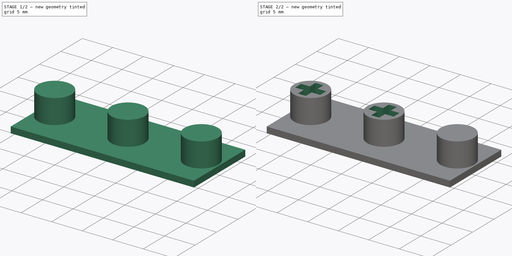
[diagram: build sequence overview — one tinted view per stage of 2, left to right]
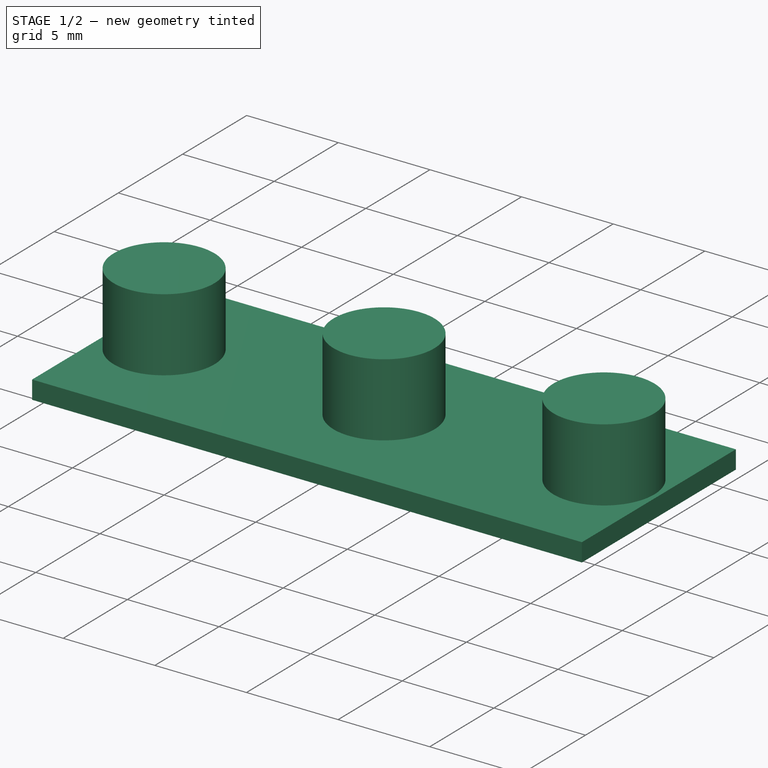
[diagram: stage 1 of 2 — iso view after this stage's code; geometry added in this stage tinted green]
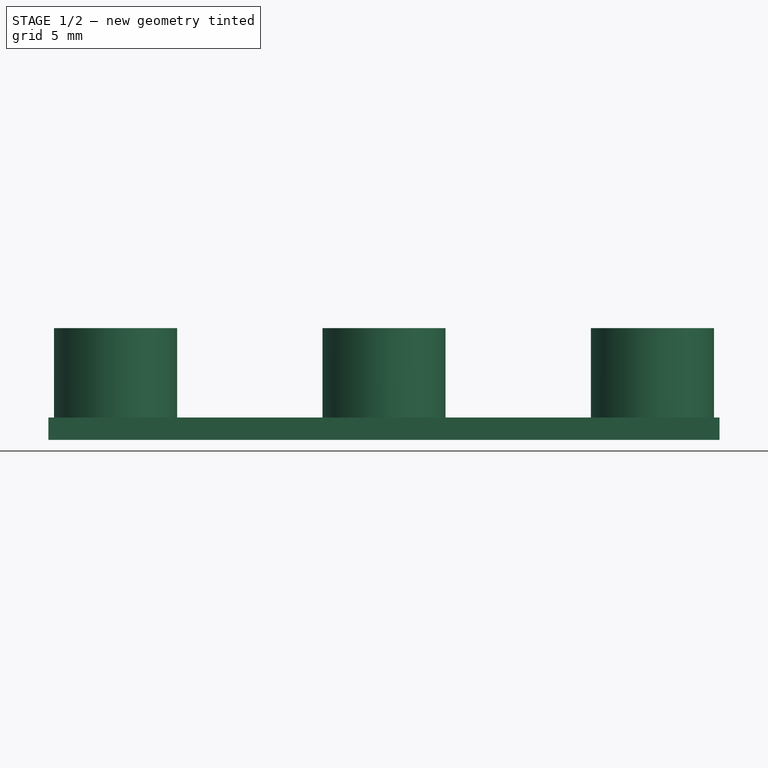
[diagram: stage 1 of 2 — front view after this stage's code; geometry added in this stage tinted green]
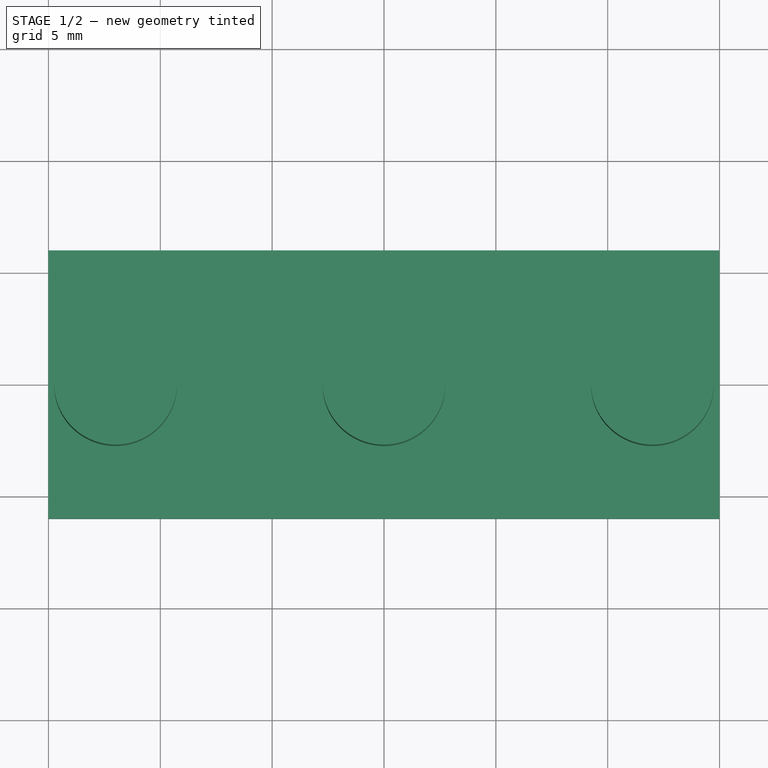
[diagram: stage 1 of 2 — top view after this stage's code; geometry added in this stage tinted green]
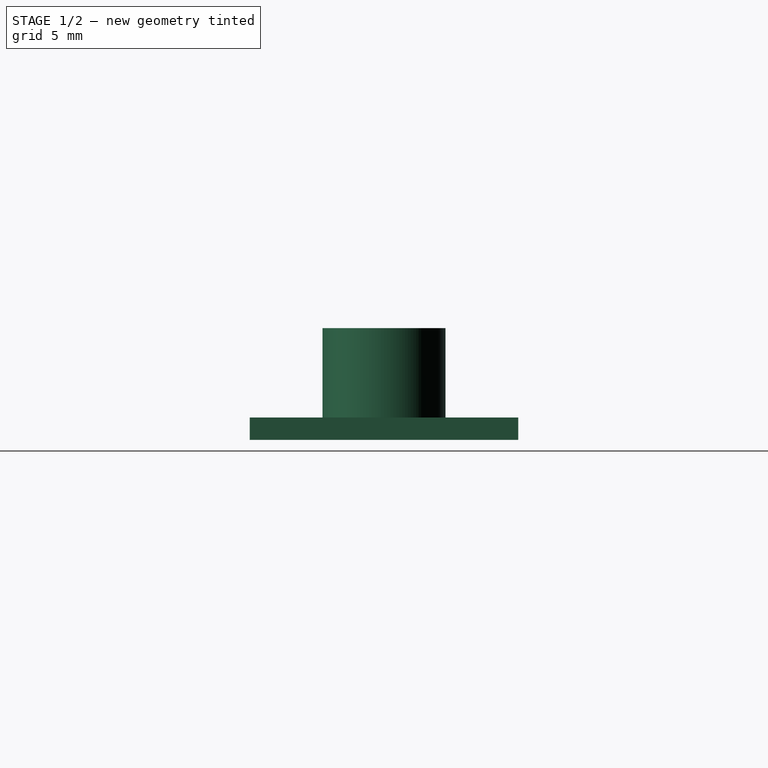
[diagram: stage 1 of 2 — right view after this stage's code; geometry added in this stage tinted green]
FCSTD DOCUMENT  (FreeCAD 1.0R38806 (Git))
Label: keycap 1u insert
License: All rights reserved
LicenseURL: http://en.wikipedia.org/wiki/All_rights_reserved
objects: Sketcher::SketchObject×3, PartDesign::Pad×2, PartDesign::Pocket×1, PartDesign::Body×1
note: 16 computed .brp shape members not serialized (recipe doc carries the construction recipe); baked Part::Feature solids carry a one-line shape summary decoded from their .brp

FEATURE [Sketcher::SketchObject] Sketch
  ArcFitTolerance = 0
  AttachmentSupport = -> [XY_Plane]
  FullyConstrained = true
  MakeInternals = false
  MapMode = 5
  sketch-geometry (4):
    g0: LineSegment StartX=-15 StartY=6 StartZ=0 EndX=15 EndY=6 EndZ=0
    g1: LineSegment StartX=15 StartY=6 StartZ=0 EndX=15 EndY=-6 EndZ=0
    g2: LineSegment StartX=15 StartY=-6 StartZ=0 EndX=-15 EndY=-6 EndZ=0
    g3: LineSegment StartX=-15 StartY=-6 StartZ=0 EndX=-15 EndY=6 EndZ=0
  constraints (12):
    c: Coincident(g0,g1)
    c: Coincident(g1,g2)
    c: Coincident(g2,g3)
    c: Coincident(g3,g0)
    c: Horizontal(g0)
    c: Horizontal(g2)
    c: Vertical(g1)
    c: Vertical(g3)
    c: DistanceY(g1,g1) = 12
    c: DistanceX(g0,g0) = 30
    c: DistanceY(g-1,g0) = 6
    c: DistanceX(g-1,g0) = 15
FEATURE [PartDesign::Pad] Pad
  Direction = (0,0,1)
  Length = 1
  Length2 = 10
  Profile = -> Sketch
  ReferenceAxis = -> Sketch [N_Axis]
  Suppressed = false
  Type = 0
FEATURE [Sketcher::SketchObject] Sketch001
  ArcFitTolerance = 0
  AttachmentSupport = -> [Pad]
  FullyConstrained = true
  MakeInternals = false
  MapMode = 5
  Placement = pos=(0,0,1) rot=(0,0,1;0rad)
  sketch-geometry (3):
    g0: Circle CenterX=0 CenterY=0 CenterZ=0 NormalX=0 NormalY=0 NormalZ=1 AngleXU=0 Radius=2.75
    g1: Circle CenterX=-12 CenterY=0 CenterZ=0 NormalX=0 NormalY=0 NormalZ=1 AngleXU=0 Radius=2.75
    g2: Circle CenterX=12 CenterY=0 CenterZ=0 NormalX=0 NormalY=0 NormalZ=1 AngleXU=0 Radius=2.75
  constraints (8):
    c: Coincident(g0,g-1)
    c: Diameter(g0) = 5.5
    c: PointOnObject(g1,g-1)
    c: PointOnObject(g2,g-1)
    c: Equal(g0,g1)
    c: Equal(g0,g2)
    c: DistanceX(g1,g-1) = 12
    c: DistanceX(g0,g2) = 12
FEATURE [PartDesign::Pad] Pad001
  BaseFeature = -> Pad
  Direction = (0,0,1)
  Length = 4
  Length2 = 10
  Profile = -> Sketch001
  ReferenceAxis = -> Sketch001 [N_Axis]
  Suppressed = false
  Type = 0
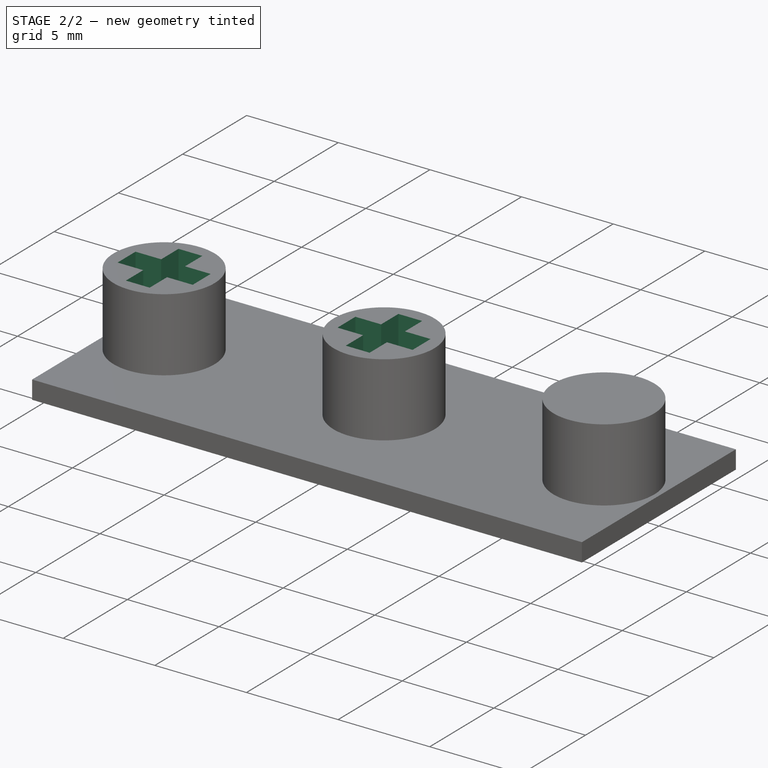
[diagram: stage 2 of 2 — iso view after this stage's code; geometry added in this stage tinted green]
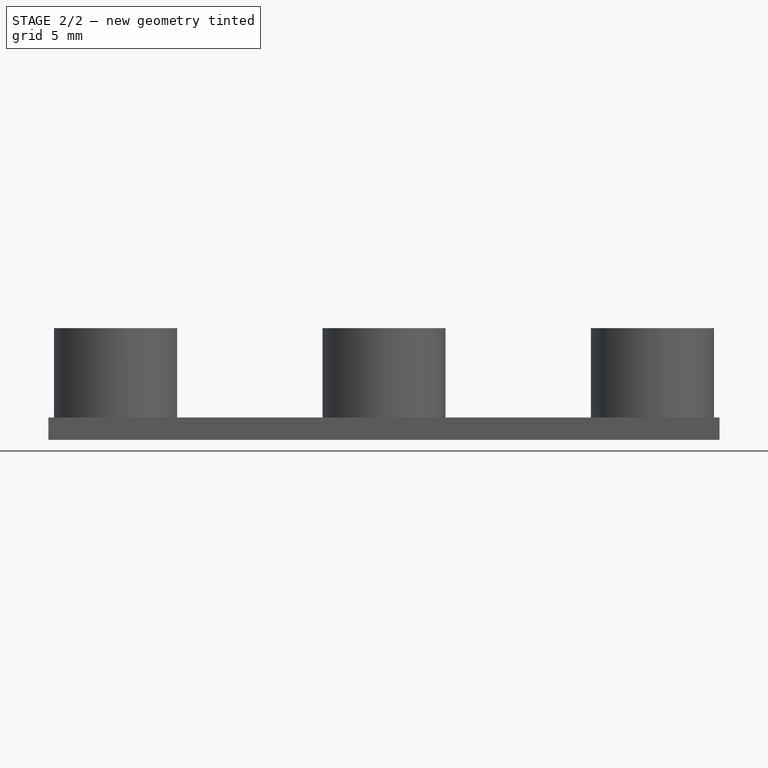
[diagram: stage 2 of 2 — front view after this stage's code; geometry added in this stage tinted green]
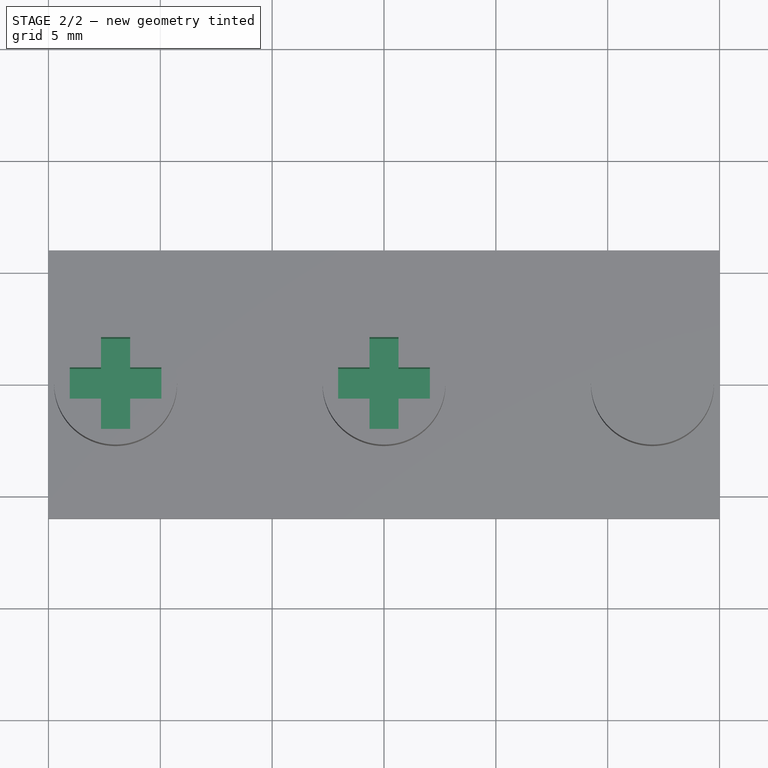
[diagram: stage 2 of 2 — top view after this stage's code; geometry added in this stage tinted green]
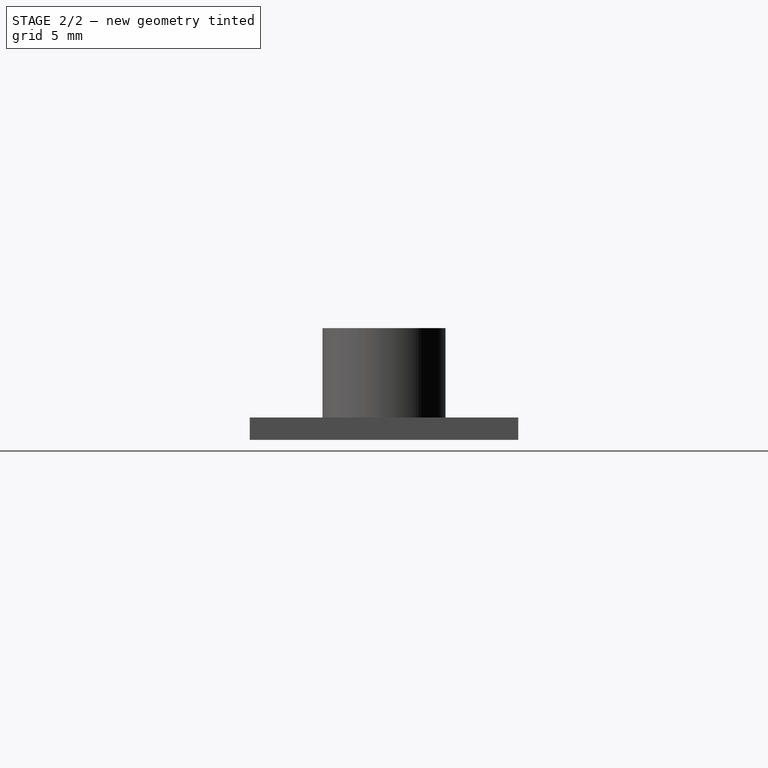
[diagram: stage 2 of 2 — right view after this stage's code; geometry added in this stage tinted green]
FEATURE [Sketcher::SketchObject] Sketch002
  ArcFitTolerance = 0
  AttachmentSupport = -> [Pad001]
  FullyConstrained = true
  MakeInternals = false
  MapMode = 5
  Placement = pos=(0,0,5) rot=(0,0,1;0rad)
  sketch-geometry (30):
    g0: LineSegment StartX=-0.65 StartY=2.05 StartZ=0 EndX=-0.65 EndY=0.7 EndZ=0
    g1: LineSegment StartX=-0.65 StartY=0.7 StartZ=0 EndX=-2.05 EndY=0.7 EndZ=0
    g2: LineSegment StartX=-2.05 StartY=0.7 StartZ=0 EndX=-2.05 EndY=-0.7 EndZ=0
    g3: LineSegment StartX=-2.05 StartY=-0.7 StartZ=0 EndX=-0.65 EndY=-0.7 EndZ=0
    g4: LineSegment StartX=-0.65 StartY=-0.7 StartZ=0 EndX=-0.65 EndY=-2.05 EndZ=0
    g5: LineSegment StartX=-0.65 StartY=-2.05 StartZ=0 EndX=0.65 EndY=-2.05 EndZ=0
    g6: LineSegment StartX=0.65 StartY=-2.05 StartZ=0 EndX=0.65 EndY=-0.7 EndZ=0
    g7: LineSegment StartX=0.65 StartY=-0.7 StartZ=0 EndX=2.05 EndY=-0.7 EndZ=0
    g8: LineSegment StartX=2.05 StartY=-0.7 StartZ=0 EndX=2.05 EndY=0.7 EndZ=0
    g9: LineSegment StartX=2.05 StartY=0.7 StartZ=0 EndX=0.65 EndY=0.7 EndZ=0
    g10: LineSegment StartX=0.65 StartY=0.7 StartZ=0 EndX=0.65 EndY=2.05 EndZ=0
    g11: LineSegment StartX=0.65 StartY=2.05 StartZ=0 EndX=-0.65 EndY=2.05 EndZ=0
    g12: LineSegment [constr] StartX=-0.65 StartY=-0.7 StartZ=0 EndX=0.65 EndY=0.7 EndZ=0
    g13: LineSegment [constr] StartX=0.65 StartY=-0.7 StartZ=0 EndX=-0.65 EndY=0.7 EndZ=0
    g14: GeomPoint [constr] X=0 Y=0 Z=0
    g15: LineSegment StartX=-12.65 StartY=2.05 StartZ=0 EndX=-12.65 EndY=0.7 EndZ=0
    g16: LineSegment StartX=-12.65 StartY=0.7 StartZ=0 EndX=-14.05 EndY=0.7 EndZ=0
    g17: LineSegment StartX=-14.05 StartY=0.7 StartZ=0 EndX=-14.05 EndY=-0.7 EndZ=0
    g18: LineSegment StartX=-14.05 StartY=-0.7 StartZ=0 EndX=-12.65 EndY=-0.7 EndZ=0
    g19: LineSegment StartX=-12.65 StartY=-0.7 StartZ=0 EndX=-12.65 EndY=-2.05 EndZ=0
    g20: LineSegment StartX=-12.65 StartY=-2.05 StartZ=0 EndX=-11.35 EndY=-2.05 EndZ=0
    g21: LineSegment StartX=-11.35 StartY=-2.05 StartZ=0 EndX=-11.35 EndY=-0.7 EndZ=0
    g22: LineSegment StartX=-11.35 StartY=-0.7 StartZ=0 EndX=-9.95 EndY=-0.7 EndZ=0
    g23: LineSegment StartX=-9.95 StartY=-0.7 StartZ=0 EndX=-9.95 EndY=0.7 EndZ=0
    g24: LineSegment StartX=-9.95 StartY=0.7 StartZ=0 EndX=-11.35 EndY=0.7 EndZ=0
    g25: LineSegment StartX=-11.35 StartY=0.7 StartZ=0 EndX=-11.35 EndY=2.05 EndZ=0
    g26: LineSegment StartX=-11.35 StartY=2.05 StartZ=0 EndX=-12.65 EndY=2.05 EndZ=0
    g27: LineSegment [constr] StartX=-12.65 StartY=-0.7 StartZ=0 EndX=-11.35 EndY=0.7 EndZ=0
    g28: LineSegment [constr] StartX=-11.35 StartY=-0.7 StartZ=0 EndX=-12.65 EndY=0.7 EndZ=0
    g29: GeomPoint [constr] X=-12 Y=0 Z=0
  constraints (83):
    c: Vertical(g0)
    c: Coincident(g1,g0)
    c: Horizontal(g1)
    c: Coincident(g2,g1)
    c: Vertical(g2)
    c: Coincident(g3,g2)
    c: Horizontal(g3)
    c: Coincident(g4,g3)
    c: Vertical(g4)
    c: Coincident(g5,g4)
    c: Horizontal(g5)
    c: Coincident(g6,g5)
    c: Vertical(g6)
    c: Coincident(g7,g6)
    c: Horizontal(g7)
    c: Coincident(g8,g7)
    c: Vertical(g8)
    c: Coincident(g9,g8)
    c: Horizontal(g9)
    c: Coincident(g10,g9)
    c: Vertical(g10)
    c: Coincident(g11,g10)
    c: Coincident(g11,g0)
    c: Horizontal(g11)
    c: Equal(g0,g10)
    c: Equal(g6,g4)
    c: Equal(g3,g1)
    c: DistanceX(g11,g11) = 1.3
    c: DistanceX(g9,g9) = 1.4
    c: DistanceY(g2,g2) = 1.4
    c: Equal(g9,g7)
    c: Equal(g9,g1)
    c: Equal(g0,g4)
    c: DistanceY(g6,g6) = 1.35
    c: Coincident(g12,g3)
    c: Coincident(g12,g9)
    c: Coincident(g13,g6)
    c: Coincident(g13,g0)
    c: PointOnObject(g14,g13)
    c: PointOnObject(g14,g12)
    c: Coincident(g14,g-1)
    c: Vertical(g15)
    c: Coincident(g16,g15)
    c: Horizontal(g16)
    c: Coincident(g17,g16)
    c: Vertical(g17)
    c: Coincident(g18,g17)
    c: Horizontal(g18)
    c: Coincident(g19,g18)
    c: Vertical(g19)
    c: Coincident(g20,g19)
    c: Horizontal(g20)
    c: Coincident(g21,g20)
    c: Vertical(g21)
    c: Coincident(g22,g21)
    c: Horizontal(g22)
    c: Coincident(g23,g22)
    c: Vertical(g23)
    c: Coincident(g24,g23)
    c: Horizontal(g24)
    c: Coincident(g25,g24)
    c: Vertical(g25)
    c: Coincident(g26,g25)
    c: Coincident(g26,g15)
    c: Horizontal(g26)
    c: Equal(g15,g25)
    c: Equal(g21,g19)
    c: Equal(g18,g16)
    c: Equal(g24,g22)
    c: Equal(g24,g16)
    c: Equal(g15,g19)
    c: Coincident(g27,g18)
    c: Coincident(g27,g24)
    c: Coincident(g28,g21)
    c: Coincident(g28,g15)
    c: PointOnObject(g29,g28)
    c: PointOnObject(g29,g27)
    c: Equal(g24,g9)
    c: Equal(g10,g25)
    c: Equal(g2,g17)
    c: Equal(g26,g11)
    c: PointOnObject(g29,g-1)
    c: DistanceX(g29,g14) = 12
FEATURE [PartDesign::Pocket] Pocket
  BaseFeature = -> Pad001
  Direction = (0,0,-1)
  Length = 4
  Length2 = 5
  Profile = -> Sketch002
  ReferenceAxis = -> Sketch002 [N_Axis]
  Suppressed = false
  Type = 0
FEATURE [PartDesign::Body] Body
  AllowCompound = false
  Group = -> [Sketch,Pad,Sketch001,Pad001,Sketch002,Pocket]
  Origin = -> Origin
  Tip = -> Pocket
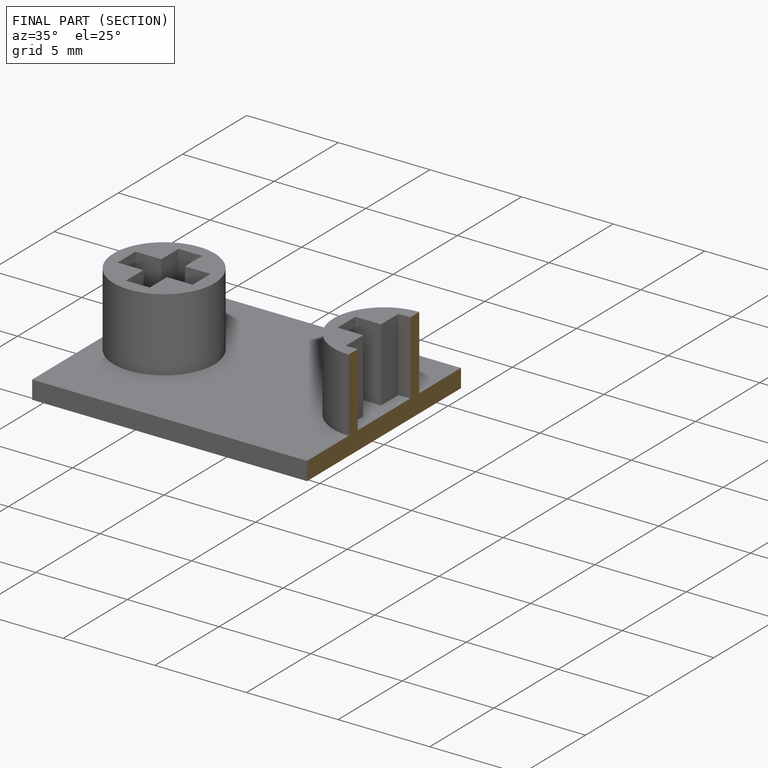
[diagram: finished part — half-section view (interior)]
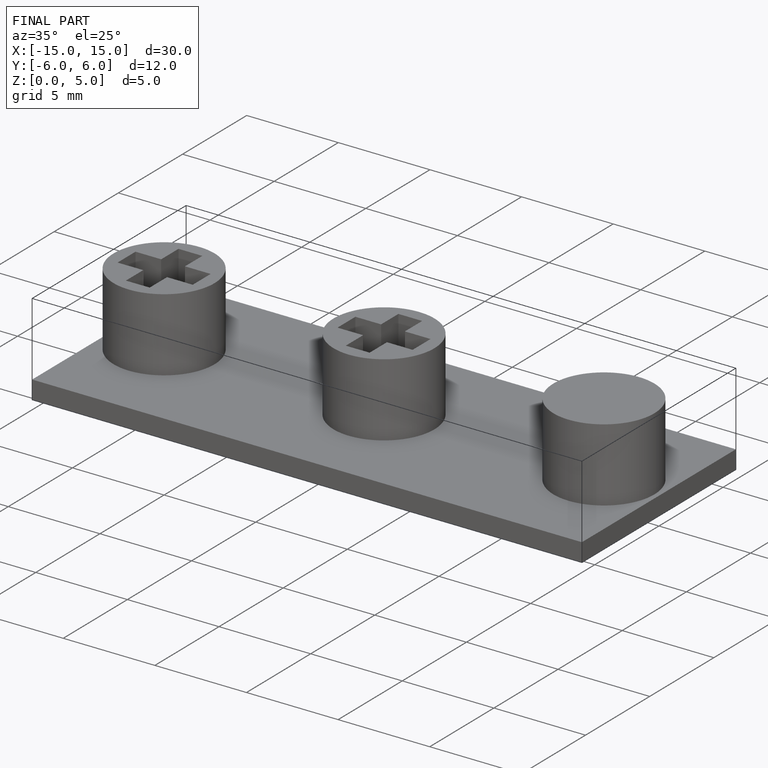
[diagram: finished part — iso view with bounding-box wireframe]
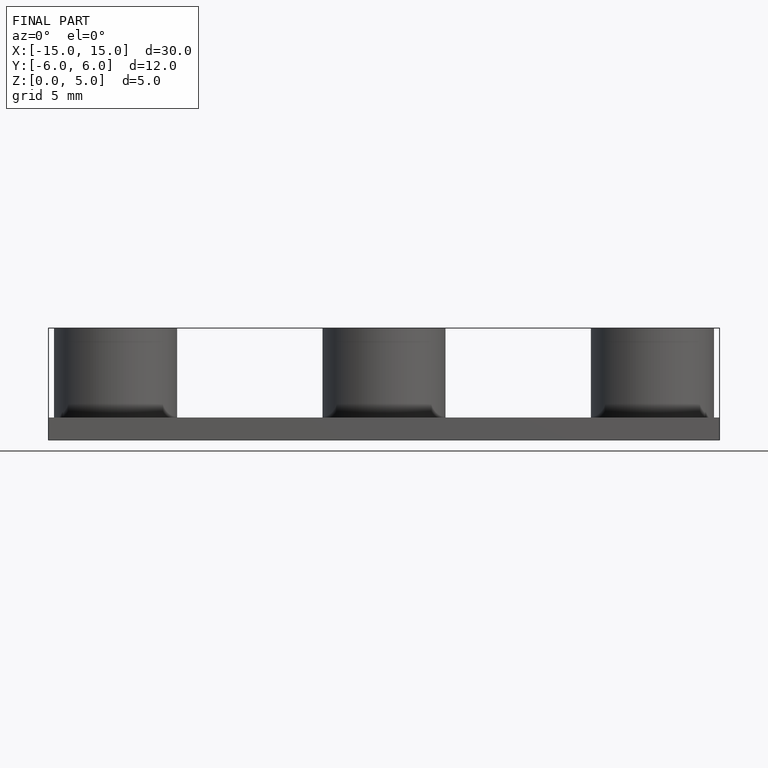
[diagram: finished part — front view with bounding-box wireframe]
